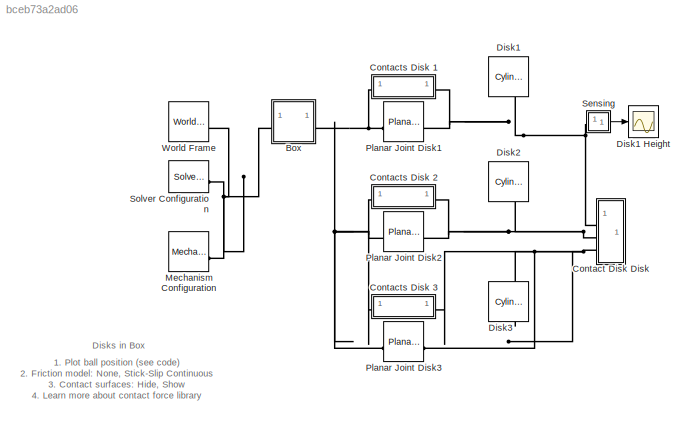
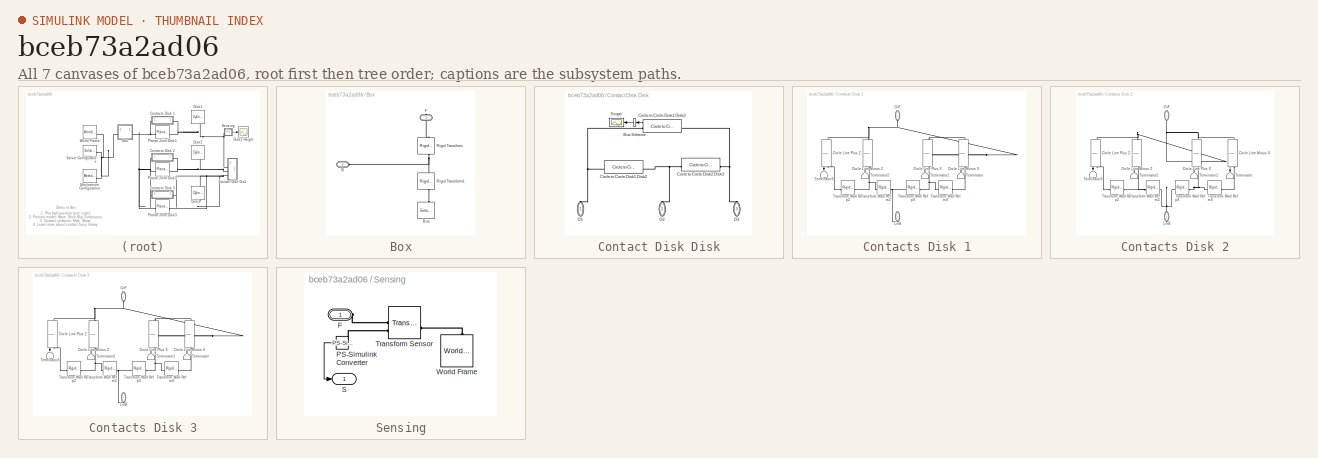
[diagram: thumbnail index - all 7 canvases of the model, root first then tree order]
MODEL slx_bceb73a2ad06
KIND model
CONFIG AbsTol = 1e-5
CONFIG EnableMultiTasking = on
CONFIG FixedStep = auto
CONFIG InitFcn = k_contact = 1e4;\nb_contact = 1e1;\n
CONFIG MaxStep = 1e-2
CONFIG MinStep = auto
CONFIG PostLoadFcn = warning off Simulink:Engine:UsingDefaultMaxStepSize\n
CONFIG RelTol = 1e-4
CONFIG SampleTimeConstraint = Unconstrained
CONFIG SolverName = ode15s
CONFIG StartFcn = tic;
CONFIG StartTime = 0.0
CONFIG StopFcn = Elapsed_Sim_Time = toc;\ndisp(['Elapsed Sim Time = ' num2str(Elapsed_Sim_Time)]);\n
CONFIG StopTime = 3
WORKSPACE source: MATLAB code (in-file)
WORKSPACE code: Disk.radius = 0.05;
WORKSPACE code: Disk.length = 0.01;
WORKSPACE code: Disk.density = 1000;
WORKSPACE code: Box.outer_width = 0.51*2;
WORKSPACE code: Box.inner_width = 0.49*2;
WORKSPACE code: Box.width = 0.05;
BLOCK [SubSystem] Box
  Tag = CustomStyle
BLOCK [PMIOPort] Box/B
  Port = 2
  Side = Left
BLOCK [Reference] Box/Box  REF=sm_lib/Body Elements/Extruded Solid
  NameLocation = right
  SourceBlock = sm_lib/Body Elements/Extruded Solid
  SourceType = Extruded Solid
BLOCK [PMIOPort] Box/F
  NameLocation = right
  Side = Right
BLOCK [Reference] Box/Rigid Transform  REF=sm_lib/Frames and
Transforms/Rigid
Transform
  NameLocation = right
  SourceBlock = sm_lib/Frames and\nTransforms/Rigid\nTransform
  SourceType = Rigid\nTransform
BLOCK [Reference] Box/Rigid Transform1  REF=sm_lib/Frames and
Transforms/Rigid
Transform
  NameLocation = left
  SourceBlock = sm_lib/Frames and\nTransforms/Rigid\nTransform
  SourceType = Rigid\nTransform
BLOCK [SubSystem] Contact Disk Disk
BLOCK [BusSelector] Contact Disk Disk/Bus Selector
  NameLocation = top
  OutputAsBus = on
  OutputSignals = Spr Force,Damp Force
BLOCK [Reference] Contact Disk Disk/Circle to Circle Disk1 Disk2  REF=Contact_Forces_Lib/2D/Circle to Circle Force
  SourceBlock = Contact_Forces_Lib/2D/Circle to Circle Force
  SourceProductName = Simscape Multibody Contact Forces Library
  SourceType = Circle to Circle Force
BLOCK [Reference] Contact Disk Disk/Circle to Circle Disk1 Disk3  REF=Contact_Forces_Lib/2D/Circle to Circle Force
  SourceBlock = Contact_Forces_Lib/2D/Circle to Circle Force
  SourceProductName = Simscape Multibody Contact Forces Library
  SourceType = Circle to Circle Force
BLOCK [Reference] Contact Disk Disk/Circle to Circle Disk2 Disk3  REF=Contact_Forces_Lib/2D/Circle to Circle Force
  SourceBlock = Contact_Forces_Lib/2D/Circle to Circle Force
  SourceProductName = Simscape Multibody Contact Forces Library
  SourceType = Circle to Circle Force
BLOCK [PMIOPort] Contact Disk Disk/D1
  NameLocation = right
  Side = Left
BLOCK [PMIOPort] Contact Disk Disk/D2
  NameLocation = left
  Port = 2
  Side = Left
BLOCK [PMIOPort] Contact Disk Disk/D3
  NameLocation = right
  Port = 3
  Side = Left
BLOCK [Scope] Contact Disk Disk/Scope
  Floating = off
  NameLocation = top
  NumInputPorts = 1
  ScopeSpecificationString = Simulink.scopes.TimeScopeBlockCfg('CurrentConfiguration', extmgr.ConfigurationSet(extmgr.Configuration('Core','General UI',true),extmgr.Configuration('Core','Source UI',true),extmgr.Configuration('Sources','WiredSimulink',true,'DataLoggingVariableName','ScopeData1','DataLoggingSaveFormat','StructureWithTime','DataLoggingLimitDataPoints',true,'DataLoggingDecimation','1','DataLoggingDecimateData',tr...<+1682ch>
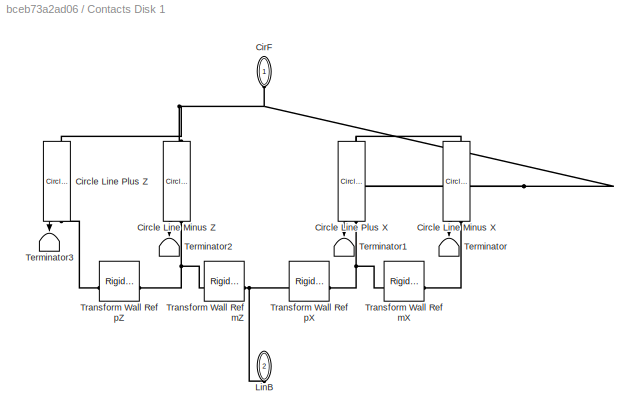
BLOCK [SubSystem] Contacts Disk 1
  NameLocation = top
BLOCK [PMIOPort] Contacts Disk 1/CirF
  NameLocation = right
  Side = Left
BLOCK [Reference] Contacts Disk 1/Circle Line Minus X  REF=Contact_Forces_Lib/2D/Circle to Finite Line Force
  NameLocation = left
  SourceBlock = Contact_Forces_Lib/2D/Circle to Finite Line Force
  SourceProductName = Simscape Multibody Contact Forces Library
  SourceType = Circle on Finite Line Force
BLOCK [Reference] Contacts Disk 1/Circle Line Minus Z  REF=Contact_Forces_Lib/2D/Circle to Finite Line Force
  NameLocation = right
  SourceBlock = Contact_Forces_Lib/2D/Circle to Finite Line Force
  SourceProductName = Simscape Multibody Contact Forces Library
  SourceType = Circle on Finite Line Force
BLOCK [Reference] Contacts Disk 1/Circle Line Plus X  REF=Contact_Forces_Lib/2D/Circle to Finite Line Force
  NameLocation = left
  SourceBlock = Contact_Forces_Lib/2D/Circle to Finite Line Force
  SourceProductName = Simscape Multibody Contact Forces Library
  SourceType = Circle on Finite Line Force
BLOCK [Reference] Contacts Disk 1/Circle Line Plus Z  REF=Contact_Forces_Lib/2D/Circle to Finite Line Force
  NameLocation = right
  SourceBlock = Contact_Forces_Lib/2D/Circle to Finite Line Force
  SourceProductName = Simscape Multibody Contact Forces Library
  SourceType = Circle on Finite Line Force
BLOCK [PMIOPort] Contacts Disk 1/LinB
  NameLocation = left
  Port = 2
  Side = Right
BLOCK [Terminator] Contacts Disk 1/Terminator
  NameLocation = left
BLOCK [Terminator] Contacts Disk 1/Terminator1
  NameLocation = left
BLOCK [Terminator] Contacts Disk 1/Terminator2
  NameLocation = left
BLOCK [Terminator] Contacts Disk 1/Terminator3
  NameLocation = left
BLOCK [Reference] Contacts Disk 1/Transform Wall Ref mX  REF=sm_lib/Frames and
Transforms/Rigid
Transform
  SourceBlock = sm_lib/Frames and\nTransforms/Rigid\nTransform
  SourceType = Rigid\nTransform
BLOCK [Reference] Contacts Disk 1/Transform Wall Ref mZ  REF=sm_lib/Frames and
Transforms/Rigid
Transform
  SourceBlock = sm_lib/Frames and\nTransforms/Rigid\nTransform
  SourceType = Rigid\nTransform
BLOCK [Reference] Contacts Disk 1/Transform Wall Ref pX  REF=sm_lib/Frames and
Transforms/Rigid
Transform
  SourceBlock = sm_lib/Frames and\nTransforms/Rigid\nTransform
  SourceType = Rigid\nTransform
BLOCK [Reference] Contacts Disk 1/Transform Wall Ref pZ  REF=sm_lib/Frames and
Transforms/Rigid
Transform
  SourceBlock = sm_lib/Frames and\nTransforms/Rigid\nTransform
  SourceType = Rigid\nTransform
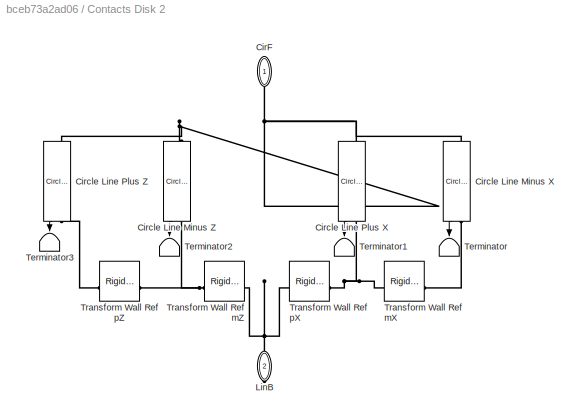
BLOCK [SubSystem] Contacts Disk 2
  NameLocation = top
BLOCK [PMIOPort] Contacts Disk 2/CirF
  NameLocation = right
  Side = Left
BLOCK [Reference] Contacts Disk 2/Circle Line Minus X  REF=Contact_Forces_Lib/2D/Circle to Finite Line Force
  NameLocation = left
  SourceBlock = Contact_Forces_Lib/2D/Circle to Finite Line Force
  SourceProductName = Simscape Multibody Contact Forces Library
  SourceType = Circle on Finite Line Force
BLOCK [Reference] Contacts Disk 2/Circle Line Minus Z  REF=Contact_Forces_Lib/2D/Circle to Finite Line Force
  NameLocation = right
  SourceBlock = Contact_Forces_Lib/2D/Circle to Finite Line Force
  SourceProductName = Simscape Multibody Contact Forces Library
  SourceType = Circle on Finite Line Force
BLOCK [Reference] Contacts Disk 2/Circle Line Plus X  REF=Contact_Forces_Lib/2D/Circle to Finite Line Force
  NameLocation = left
  SourceBlock = Contact_Forces_Lib/2D/Circle to Finite Line Force
  SourceProductName = Simscape Multibody Contact Forces Library
  SourceType = Circle on Finite Line Force
BLOCK [Reference] Contacts Disk 2/Circle Line Plus Z  REF=Contact_Forces_Lib/2D/Circle to Finite Line Force
  NameLocation = right
  SourceBlock = Contact_Forces_Lib/2D/Circle to Finite Line Force
  SourceProductName = Simscape Multibody Contact Forces Library
  SourceType = Circle on Finite Line Force
BLOCK [PMIOPort] Contacts Disk 2/LinB
  NameLocation = left
  Port = 2
  Side = Right
BLOCK [Terminator] Contacts Disk 2/Terminator
  NameLocation = left
BLOCK [Terminator] Contacts Disk 2/Terminator1
  NameLocation = left
BLOCK [Terminator] Contacts Disk 2/Terminator2
  NameLocation = left
BLOCK [Terminator] Contacts Disk 2/Terminator3
  NameLocation = left
BLOCK [Reference] Contacts Disk 2/Transform Wall Ref mX  REF=sm_lib/Frames and
Transforms/Rigid
Transform
  SourceBlock = sm_lib/Frames and\nTransforms/Rigid\nTransform
  SourceType = Rigid\nTransform
BLOCK [Reference] Contacts Disk 2/Transform Wall Ref mZ  REF=sm_lib/Frames and
Transforms/Rigid
Transform
  SourceBlock = sm_lib/Frames and\nTransforms/Rigid\nTransform
  SourceType = Rigid\nTransform
BLOCK [Reference] Contacts Disk 2/Transform Wall Ref pX  REF=sm_lib/Frames and
Transforms/Rigid
Transform
  SourceBlock = sm_lib/Frames and\nTransforms/Rigid\nTransform
  SourceType = Rigid\nTransform
BLOCK [Reference] Contacts Disk 2/Transform Wall Ref pZ  REF=sm_lib/Frames and
Transforms/Rigid
Transform
  SourceBlock = sm_lib/Frames and\nTransforms/Rigid\nTransform
  SourceType = Rigid\nTransform
BLOCK [SubSystem] Contacts Disk 3
  NameLocation = top
BLOCK [PMIOPort] Contacts Disk 3/CirF
  NameLocation = right
  Side = Left
BLOCK [Reference] Contacts Disk 3/Circle Line Minus X  REF=Contact_Forces_Lib/2D/Circle to Finite Line Force
  NameLocation = left
  SourceBlock = Contact_Forces_Lib/2D/Circle to Finite Line Force
  SourceProductName = Simscape Multibody Contact Forces Library
  SourceType = Circle on Finite Line Force
BLOCK [Reference] Contacts Disk 3/Circle Line Minus Z  REF=Contact_Forces_Lib/2D/Circle to Finite Line Force
  NameLocation = right
  SourceBlock = Contact_Forces_Lib/2D/Circle to Finite Line Force
  SourceProductName = Simscape Multibody Contact Forces Library
  SourceType = Circle on Finite Line Force
BLOCK [Reference] Contacts Disk 3/Circle Line Plus X  REF=Contact_Forces_Lib/2D/Circle to Finite Line Force
  NameLocation = left
  SourceBlock = Contact_Forces_Lib/2D/Circle to Finite Line Force
  SourceProductName = Simscape Multibody Contact Forces Library
  SourceType = Circle on Finite Line Force
BLOCK [Reference] Contacts Disk 3/Circle Line Plus Z  REF=Contact_Forces_Lib/2D/Circle to Finite Line Force
  NameLocation = right
  SourceBlock = Contact_Forces_Lib/2D/Circle to Finite Line Force
  SourceProductName = Simscape Multibody Contact Forces Library
  SourceType = Circle on Finite Line Force
BLOCK [PMIOPort] Contacts Disk 3/LinB
  NameLocation = left
  Port = 2
  Side = Right
BLOCK [Terminator] Contacts Disk 3/Terminator
  NameLocation = left
BLOCK [Terminator] Contacts Disk 3/Terminator1
  NameLocation = left
BLOCK [Terminator] Contacts Disk 3/Terminator2
  NameLocation = left
BLOCK [Terminator] Contacts Disk 3/Terminator3
  NameLocation = left
BLOCK [Reference] Contacts Disk 3/Transform Wall Ref mX  REF=sm_lib/Frames and
Transforms/Rigid
Transform
  SourceBlock = sm_lib/Frames and\nTransforms/Rigid\nTransform
  SourceType = Rigid\nTransform
BLOCK [Reference] Contacts Disk 3/Transform Wall Ref mZ  REF=sm_lib/Frames and
Transforms/Rigid
Transform
  SourceBlock = sm_lib/Frames and\nTransforms/Rigid\nTransform
  SourceType = Rigid\nTransform
BLOCK [Reference] Contacts Disk 3/Transform Wall Ref pX  REF=sm_lib/Frames and
Transforms/Rigid
Transform
  SourceBlock = sm_lib/Frames and\nTransforms/Rigid\nTransform
  SourceType = Rigid\nTransform
BLOCK [Reference] Contacts Disk 3/Transform Wall Ref pZ  REF=sm_lib/Frames and
Transforms/Rigid
Transform
  SourceBlock = sm_lib/Frames and\nTransforms/Rigid\nTransform
  SourceType = Rigid\nTransform
BLOCK [Reference] Disk1  REF=Parts_Lib/Cylinder
  NameLocation = right
  SourceBlock = Parts_Lib/Cylinder
  SourceType = Solid Cylinder with Markings
BLOCK [Scope] Disk1 Height
  Floating = off
  NameLocation = top
  NumInputPorts = 1
  ScopeSpecificationString = Simulink.scopes.TimeScopeBlockCfg('CurrentConfiguration', extmgr.ConfigurationSet(extmgr.Configuration('Core','General UI',true,'FigureColor',[0.501960784313725 0.501960784313725 0.501960784313725]),extmgr.Configuration('Core','Source UI',true),extmgr.Configuration('Sources','WiredSimulink',true,'DataLoggingSaveFormat','StructureWithTime','DataLoggingDecimation','1'),extmgr.Configuration('Visuals'...<+2623ch>
BLOCK [Reference] Disk2  REF=Parts_Lib/Cylinder
  NameLocation = right
  SourceBlock = Parts_Lib/Cylinder
  SourceType = Solid Cylinder with Markings
BLOCK [Reference] Disk3  REF=Parts_Lib/Cylinder
  NameLocation = right
  SourceBlock = Parts_Lib/Cylinder
  SourceType = Solid Cylinder with Markings
BLOCK [Reference] Mechanism Configuration  REF=sm_lib/Utilities/Mechanism
Configuration
  SourceBlock = sm_lib/Utilities/Mechanism\nConfiguration
  SourceType = Mechanism\nConfiguration
BLOCK [Reference] Planar Joint Disk1  REF=sm_lib/Joints/Planar Joint
  SourceBlock = sm_lib/Joints/Planar Joint
  SourceType = Planar Joint
BLOCK [Reference] Planar Joint Disk2  REF=sm_lib/Joints/Planar Joint
  SourceBlock = sm_lib/Joints/Planar Joint
  SourceType = Planar Joint
BLOCK [Reference] Planar Joint Disk3  REF=sm_lib/Joints/Planar Joint
  SourceBlock = sm_lib/Joints/Planar Joint
  SourceType = Planar Joint
BLOCK [SubSystem] Sensing
  NameLocation = top
BLOCK [PMIOPort] Sensing/F
  NameLocation = top
  Side = Left
BLOCK [Reference] Sensing/PS-Simulink Converter  REF=nesl_utility/PS-Simulink
Converter
  NameLocation = top
  SourceBlock = nesl_utility/PS-Simulink\nConverter
  SourceType = PS-Simulink\nConverter
BLOCK [Outport] Sensing/S
  VectorParamsAs1DForOutWhenUnconnected = off
BLOCK [Reference] Sensing/Transform Sensor  REF=sm_lib/Frames and
Transforms/Transform
Sensor
  SourceBlock = sm_lib/Frames and\nTransforms/Transform\nSensor
  SourceType = Transform\nSensor
BLOCK [Reference] Sensing/World Frame  REF=sm_lib/Frames and
Transforms/World Frame
  NameLocation = right
  SourceBlock = sm_lib/Frames and\nTransforms/World Frame
  SourceType = World Frame
BLOCK [Reference] Solver Configuration  REF=nesl_utility/Solver
Configuration
  SourceBlock = nesl_utility/Solver\nConfiguration
  SourceType = Solver\nConfiguration
BLOCK [Reference] World Frame  REF=sm_lib/Frames and
Transforms/World Frame
  NameLocation = top
  SourceBlock = sm_lib/Frames and\nTransforms/World Frame
  SourceType = World Frame
ANNOTATION (root): 1. Plot ball position ( see code ) 2. Friction model: None , Stick-Slip Continuous 3. Contact surfaces: Hide , Show 4. Learn more about contact force library
ANNOTATION (root): Disks in Box
LINE Contact Disk Disk/Bus Selector:1 -> Contact Disk Disk/Scope:1
LINE Contact Disk Disk/Circle to Circle Disk1 Disk3:1 -> Contact Disk Disk/Bus Selector:1
LINE Contacts Disk 1/Circle Line Minus X:1 -> Contacts Disk 1/Terminator:1
LINE Contacts Disk 1/Circle Line Minus Z:1 -> Contacts Disk 1/Terminator2:1
LINE Contacts Disk 1/Circle Line Plus X:1 -> Contacts Disk 1/Terminator1:1
LINE Contacts Disk 1/Circle Line Plus Z:1 -> Contacts Disk 1/Terminator3:1
LINE Contacts Disk 2/Circle Line Minus X:1 -> Contacts Disk 2/Terminator:1
LINE Contacts Disk 2/Circle Line Minus Z:1 -> Contacts Disk 2/Terminator2:1
LINE Contacts Disk 2/Circle Line Plus X:1 -> Contacts Disk 2/Terminator1:1
LINE Contacts Disk 2/Circle Line Plus Z:1 -> Contacts Disk 2/Terminator3:1
LINE Contacts Disk 3/Circle Line Minus X:1 -> Contacts Disk 3/Terminator:1
LINE Contacts Disk 3/Circle Line Minus Z:1 -> Contacts Disk 3/Terminator2:1
LINE Contacts Disk 3/Circle Line Plus X:1 -> Contacts Disk 3/Terminator1:1
LINE Contacts Disk 3/Circle Line Plus Z:1 -> Contacts Disk 3/Terminator3:1
LINE Sensing/PS-Simulink Converter:1 -> Sensing/S:1
LINE Sensing:1 -> Disk1 Height:1
PNET net1: Box/B:RConn1 -- Box/Rigid Transform1:LConn1 -- Box/Rigid Transform:LConn1
PLINE Box/Box:RConn1 -- Box/Rigid Transform1:RConn1
PLINE Box/F:RConn1 -- Box/Rigid Transform:RConn1
PNET net2: Box:LConn1 -- Mechanism Configuration:RConn1 -- Solver Configuration:RConn1 -- World Frame:RConn1
PNET net3: Box:RConn1 -- Contacts Disk 1:RConn1 -- Contacts Disk 2:RConn1 -- Contacts Disk 3:RConn1 -- Planar Joint Disk1:LConn1 -- Planar Joint Disk2:LConn1 -- Planar Joint Disk3:LConn1
PNET net4: Contact Disk Disk/Circle to Circle Disk1 Disk2:LConn1 -- Contact Disk Disk/Circle to Circle Disk2 Disk3:RConn1 -- Contact Disk Disk/D2:RConn1
PNET net5: Contact Disk Disk/Circle to Circle Disk1 Disk2:RConn1 -- Contact Disk Disk/Circle to Circle Disk1 Disk3:RConn1 -- Contact Disk Disk/D1:RConn1
PNET net6: Contact Disk Disk/Circle to Circle Disk1 Disk3:LConn1 -- Contact Disk Disk/Circle to Circle Disk2 Disk3:LConn1 -- Contact Disk Disk/D3:RConn1
PNET net7: Contact Disk Disk:LConn1 -- Contacts Disk 1:LConn1 -- Disk1:LConn1 -- Planar Joint Disk1:RConn1 -- Sensing:LConn1
PNET net8: Contact Disk Disk:LConn2 -- Contacts Disk 2:LConn1 -- Disk2:LConn1 -- Planar Joint Disk2:RConn1
PNET net9: Contact Disk Disk:LConn3 -- Contacts Disk 3:LConn1 -- Disk3:LConn1 -- Planar Joint Disk3:RConn1
PNET net10: Contacts Disk 1/CirF:RConn1 -- Contacts Disk 1/Circle Line Minus X:LConn1 -- Contacts Disk 1/Circle Line Minus Z:LConn1 -- Contacts Disk 1/Circle Line Plus X:LConn1 -- Contacts Disk 1/Circle Line Plus Z:LConn1
PLINE Contacts Disk 1/Circle Line Minus X:RConn1 -- Contacts Disk 1/Transform Wall Ref mX:RConn1
PNET net11: Contacts Disk 1/Circle Line Minus Z:RConn1 -- Contacts Disk 1/Transform Wall Ref mZ:RConn1 -- Contacts Disk 1/Transform Wall Ref pZ:LConn1
PNET net12: Contacts Disk 1/Circle Line Plus X:RConn1 -- Contacts Disk 1/Transform Wall Ref mX:LConn1 -- Contacts Disk 1/Transform Wall Ref pX:RConn1
PLINE Contacts Disk 1/Circle Line Plus Z:RConn1 -- Contacts Disk 1/Transform Wall Ref pZ:RConn1
PNET net13: Contacts Disk 1/LinB:RConn1 -- Contacts Disk 1/Transform Wall Ref mZ:LConn1 -- Contacts Disk 1/Transform Wall Ref pX:LConn1
PNET net14: Contacts Disk 2/CirF:RConn1 -- Contacts Disk 2/Circle Line Minus X:LConn1 -- Contacts Disk 2/Circle Line Minus Z:LConn1 -- Contacts Disk 2/Circle Line Plus X:LConn1 -- Contacts Disk 2/Circle Line Plus Z:LConn1
PLINE Contacts Disk 2/Circle Line Minus X:RConn1 -- Contacts Disk 2/Transform Wall Ref mX:RConn1
PNET net15: Contacts Disk 2/Circle Line Minus Z:RConn1 -- Contacts Disk 2/Transform Wall Ref mZ:RConn1 -- Contacts Disk 2/Transform Wall Ref pZ:LConn1
PNET net16: Contacts Disk 2/Circle Line Plus X:RConn1 -- Contacts Disk 2/Transform Wall Ref mX:LConn1 -- Contacts Disk 2/Transform Wall Ref pX:RConn1
PLINE Contacts Disk 2/Circle Line Plus Z:RConn1 -- Contacts Disk 2/Transform Wall Ref pZ:RConn1
PNET net17: Contacts Disk 2/LinB:RConn1 -- Contacts Disk 2/Transform Wall Ref mZ:LConn1 -- Contacts Disk 2/Transform Wall Ref pX:LConn1
PNET net18: Contacts Disk 3/CirF:RConn1 -- Contacts Disk 3/Circle Line Minus X:LConn1 -- Contacts Disk 3/Circle Line Minus Z:LConn1 -- Contacts Disk 3/Circle Line Plus X:LConn1 -- Contacts Disk 3/Circle Line Plus Z:LConn1
PLINE Contacts Disk 3/Circle Line Minus X:RConn1 -- Contacts Disk 3/Transform Wall Ref mX:RConn1
PNET net19: Contacts Disk 3/Circle Line Minus Z:RConn1 -- Contacts Disk 3/Transform Wall Ref mZ:RConn1 -- Contacts Disk 3/Transform Wall Ref pZ:LConn1
PNET net20: Contacts Disk 3/Circle Line Plus X:RConn1 -- Contacts Disk 3/Transform Wall Ref mX:LConn1 -- Contacts Disk 3/Transform Wall Ref pX:RConn1
PLINE Contacts Disk 3/Circle Line Plus Z:RConn1 -- Contacts Disk 3/Transform Wall Ref pZ:RConn1
PNET net21: Contacts Disk 3/LinB:RConn1 -- Contacts Disk 3/Transform Wall Ref mZ:LConn1 -- Contacts Disk 3/Transform Wall Ref pX:LConn1
PLINE Sensing/F:RConn1 -- Sensing/Transform Sensor:RConn1
PLINE Sensing/PS-Simulink Converter:LConn1 -- Sensing/Transform Sensor:RConn2
PLINE Sensing/Transform Sensor:LConn1 -- Sensing/World Frame:RConn1
note: PNET lines group multi-terminal physical nets as a canonical sorted terminal list (undirected conserving connections); 2-terminal nets keep the pairwise PLINE form
